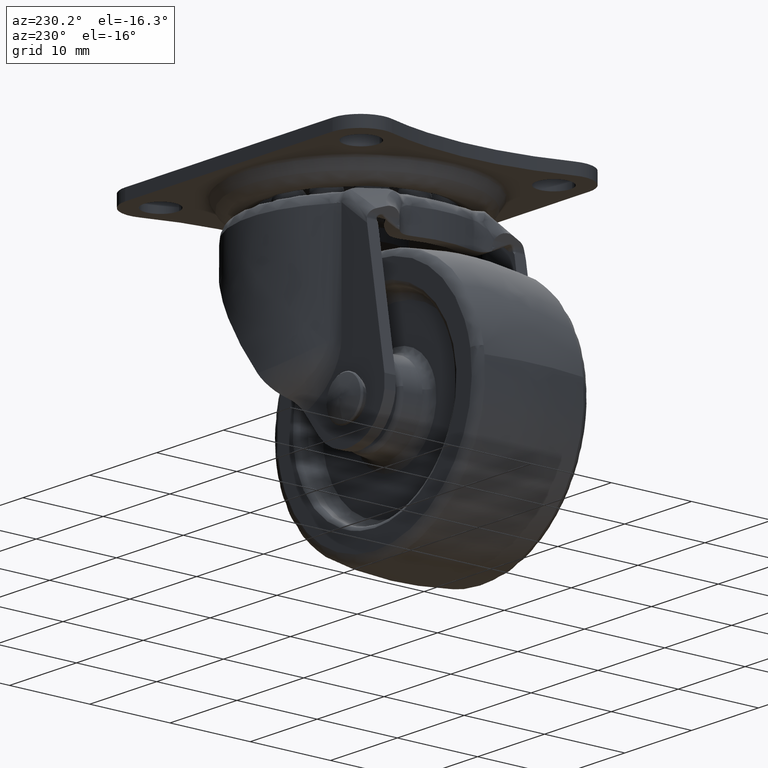
[diagram: clean part render]
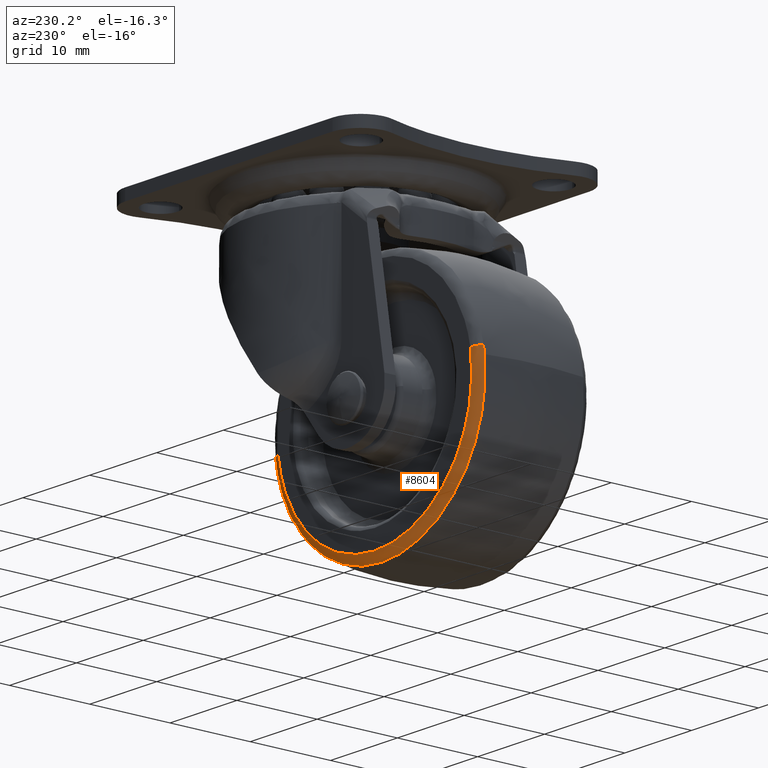
[diagram: same view with one face highlighted and labeled with its STEP entity id]
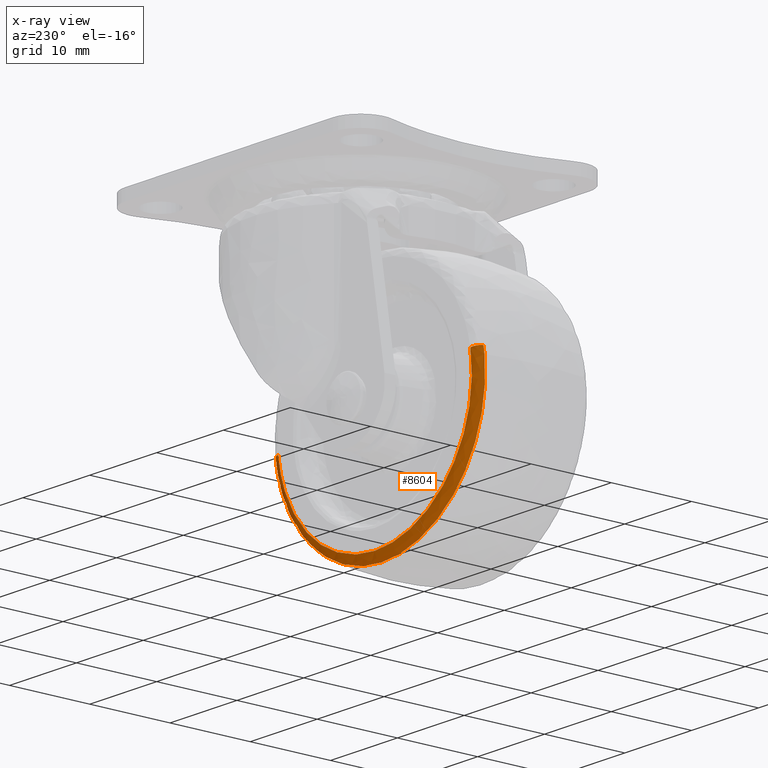
[diagram: x-ray of the same camera — body ghosted, the highlighted face saturated]
A machine part, auxiliary view. The second image highlights one B-rep face of the part: STEP entity #8604.
The next image is the same camera in x-ray: the body ghosted, the highlighted face saturated — about 0% of this face is hidden behind the body in this view.
In plain terms, the highlighted face is a freeform B-spline surface patch.
Its self-contained STEP definition (entity closure, byte-faithful):
#8399=CARTESIAN_POINT('',(14.433406335749989,6.999999999999970,-1.721420277750127));
#8400=VERTEX_POINT('',#8399);
#8418=CARTESIAN_POINT('',(-14.311329488514090,6.999999999999970,2.544082268024152));
#8419=VERTEX_POINT('',#8418);
#8433=CARTESIAN_POINT('',(-15.284173136435090,6.153842661553890,2.717021775451945));
#8434=VERTEX_POINT('',#8433);
#8435=CARTESIAN_POINT('',(-14.311329488514081,6.999999999999970,2.544082268024152));
#8436=CARTESIAN_POINT('',(-15.154463305009743,7.000000292094405,2.693963646407820));
#8437=CARTESIAN_POINT('',(-15.284173136435093,6.153842661553891,2.717021775451945));
#8445=(BOUNDED_CURVE()B_SPLINE_CURVE(2,(#8435,#8436,#8437),.UNSPECIFIED.,.F.,.U.)B_SPLINE_CURVE_WITH_KNOTS((3,3),(-1.701371931006855,-0.288958177287752),.UNSPECIFIED.)CURVE()GEOMETRIC_REPRESENTATION_ITEM()RATIONAL_B_SPLINE_CURVE((0.890726100994359,0.677668580188769,0.893663548391565))REPRESENTATION_ITEM(''));
#8446=EDGE_CURVE('',#8419,#8434,#8445,.T.);
#8463=CARTESIAN_POINT('',(15.414548025164860,6.153844244464961,-1.838437505706083));
#8464=VERTEX_POINT('',#8463);
#8480=CARTESIAN_POINT('',(14.433406335749991,6.999999999999970,-1.721420277750127));
#8481=CARTESIAN_POINT('',(15.283730757854467,7.000000297382637,-1.822835402396810));
#8482=CARTESIAN_POINT('',(15.414548025164859,6.153844244464961,-1.838437505706083));
#8490=(BOUNDED_CURVE()B_SPLINE_CURVE(2,(#8480,#8481,#8482),.UNSPECIFIED.,.F.,.U.)B_SPLINE_CURVE_WITH_KNOTS((3,3),(-1.701371937701146,-0.288959945664872),.UNSPECIFIED.)CURVE()GEOMETRIC_REPRESENTATION_ITEM()RATIONAL_B_SPLINE_CURVE((0.870689932615801,0.662425227903326,0.873560773816694))REPRESENTATION_ITEM(''));
#8491=EDGE_CURVE('',#8400,#8464,#8490,.T.);
#8496=CARTESIAN_POINT('',(-14.248069212282791,6.997933680063293,2.532836677673929));
#8497=CARTESIAN_POINT('',(-16.780905889956724,6.997933680063293,-11.715232534608861));
#8498=CARTESIAN_POINT('',(-2.532836677673930,6.997933680063293,-14.248069212282791));
#8499=CARTESIAN_POINT('',(11.715232534608861,6.997933680063293,-16.780905889956724));
#8500=CARTESIAN_POINT('',(14.248069212282791,6.997933680063293,-2.532836677673931));
#8501=CARTESIAN_POINT('',(14.320557839867464,6.997933680063294,-2.125063451696235));
#8502=CARTESIAN_POINT('',(14.369606352477463,6.997933680063295,-1.713811888338582));
#8503=CARTESIAN_POINT('',(-15.205300958305825,7.060531704962327,2.703000904085104));
#8504=CARTESIAN_POINT('',(-17.908301862390925,7.060531704962326,-12.502300054220715));
#8505=CARTESIAN_POINT('',(-2.703000904085106,7.060531704962327,-15.205300958305825));
#8506=CARTESIAN_POINT('',(12.502300054220715,7.060531704962326,-17.908301862390925));
#8507=CARTESIAN_POINT('',(15.205300958305825,7.060531704962327,-2.703000904085107));
#8508=CARTESIAN_POINT('',(15.282659608243405,7.060531704962326,-2.267832143226967));
#8509=CARTESIAN_POINT('',(15.335003359854973,7.060531704962327,-1.828951358942441));
#8510=CARTESIAN_POINT('',(-15.291875760086812,6.090256002165612,2.718391047833437));
#8511=CARTESIAN_POINT('',(-18.010266807920235,6.090256002165610,-12.573484712253364));
#8512=CARTESIAN_POINT('',(-2.718391047833438,6.090256002165612,-15.291875760086812));
#8513=CARTESIAN_POINT('',(12.573484712253364,6.090256002165610,-18.010266807920235));
#8514=CARTESIAN_POINT('',(15.291875760086812,6.090256002165612,-2.718391047833438));
#8515=CARTESIAN_POINT('',(15.369674868901377,6.090256002165610,-2.280744555734341));
#8516=CARTESIAN_POINT('',(15.422316651438662,6.090256002165613,-1.839364904968376));
#8524=(BOUNDED_SURFACE()B_SPLINE_SURFACE(2,2,((#8496,#8503,#8510),(#8497,#8504,#8511),(#8498,#8505,#8512),(#8499,#8506,#8513),(#8500,#8507,#8514),(#8501,#8508,#8515),(#8502,#8509,#8516)),.UNSPECIFIED.,.F.,.F.,.U.)B_SPLINE_SURFACE_WITH_KNOTS((3,2,2,3),(3,3),(0.0,25.733624962074831,51.467249924149662,52.496593940972758),(0.0,1.626377327922925),.UNSPECIFIED.)GEOMETRIC_REPRESENTATION_ITEM()RATIONAL_B_SPLINE_SURFACE(((0.913081197338649,0.655166785645628,0.916312040424044),(0.645645906412091,0.463272876938217,0.647930457466723),(0.913081197338649,0.655166785645628,0.916312040424044),(0.645645906412091,0.463272876938217,0.647930457466723),(0.913081197338649,0.655166785645628,0.916312040424044),(0.902383795903434,0.647491036617504,0.905576787343696),(0.892542185766888,0.640429346926016,0.895700353690741)))REPRESENTATION_ITEM('')SURFACE());
#8525=CARTESIAN_POINT('',(0.0,7.0,-14.535697650934241));
#8526=VERTEX_POINT('',#8525);
#8527=CARTESIAN_POINT('',(0.0,7.0,-14.535697650934241));
#8528=CARTESIAN_POINT('',(12.905093724362754,6.999999999999999,-14.535697650934235));
#8529=CARTESIAN_POINT('',(14.433406335749988,6.999999999999970,-1.721420277750127));
#8537=(BOUNDED_CURVE()B_SPLINE_CURVE(2,(#8527,#8528,#8529),.UNSPECIFIED.,.F.,.U.)B_SPLINE_CURVE_WITH_KNOTS((3,3),(0.0,0.229495616428866),.UNSPECIFIED.)CURVE()GEOMETRIC_REPRESENTATION_ITEM()RATIONAL_B_SPLINE_CURVE((1.0,0.731129160802288,0.955895753455980))REPRESENTATION_ITEM(''));
#8538=EDGE_CURVE('',#8526,#8400,#8537,.T.);
#8539=ORIENTED_EDGE('',*,*,#8538,.T.);
#8540=ORIENTED_EDGE('',*,*,#8491,.T.);
#8541=CARTESIAN_POINT('',(0.0,6.153846112684540,-15.523792556147701));
#8542=VERTEX_POINT('',#8541);
#8543=CARTESIAN_POINT('',(0.0,6.153846112684540,-15.523792556147701));
#8544=CARTESIAN_POINT('',(13.782344601587027,6.153846112684540,-15.523792556147706));
#8545=CARTESIAN_POINT('',(15.414548025164859,6.153844244464962,-1.838437505706083));
#8553=(BOUNDED_CURVE()B_SPLINE_CURVE(2,(#8543,#8544,#8545),.UNSPECIFIED.,.F.,.U.)B_SPLINE_CURVE_WITH_KNOTS((3,3),(0.0,0.229495613208499),.UNSPECIFIED.)CURVE()GEOMETRIC_REPRESENTATION_ITEM()RATIONAL_B_SPLINE_CURVE((1.0,0.731129164575183,0.955895747147964))REPRESENTATION_ITEM(''));
#8554=EDGE_CURVE('',#8542,#8464,#8553,.T.);
#8555=ORIENTED_EDGE('',*,*,#8554,.F.);
#8556=CARTESIAN_POINT('',(-15.419964579828569,6.153842671092996,1.792440883301940));
#8557=VERTEX_POINT('',#8556);
#8558=CARTESIAN_POINT('',(-15.419964579828571,6.153842671092996,1.792440883301939));
#8559=CARTESIAN_POINT('',(-15.523793074690465,6.153842759855809,0.899227643966485));
#8560=CARTESIAN_POINT('',(-15.523793059274370,6.153842859534223,0.000000058484235));
#8561=CARTESIAN_POINT('',(-15.523792793139039,6.153844580329994,-15.523792528599461));
#8562=CARTESIAN_POINT('',(0.0,6.153846112684540,-15.523792556147701));
#8570=(BOUNDED_CURVE()B_SPLINE_CURVE(2,(#8558,#8559,#8560,#8561,#8562),.UNSPECIFIED.,.F.,.U.)B_SPLINE_CURVE_WITH_KNOTS((3,2,3),(0.730000021087391,0.750000000000000,1.0),.UNSPECIFIED.)CURVE()GEOMETRIC_REPRESENTATION_ITEM()RATIONAL_B_SPLINE_CURVE((0.956886159695762,0.976568567200339,1.0,0.707106781186547,1.0))REPRESENTATION_ITEM(''));
#8571=EDGE_CURVE('',#8557,#8542,#8570,.T.);
#8572=ORIENTED_EDGE('',*,*,#8571,.F.);
#8573=CARTESIAN_POINT('',(-15.284173136435095,6.153842661553890,2.717021775451945));
#8574=CARTESIAN_POINT('',(-15.365989548594561,6.153842655876486,2.256775834270563));
#8575=CARTESIAN_POINT('',(-15.419964579828571,6.153842671092996,1.792440883301939));
#8583=(BOUNDED_CURVE()B_SPLINE_CURVE(2,(#8573,#8574,#8575),.UNSPECIFIED.,.F.,.U.)B_SPLINE_CURVE_WITH_KNOTS((3,3),(0.719918253124407,0.730000021087391),.UNSPECIFIED.)CURVE()GEOMETRIC_REPRESENTATION_ITEM()RATIONAL_B_SPLINE_CURVE((0.937995440737806,0.946964475963939,0.956886159695762))REPRESENTATION_ITEM(''));
#8584=EDGE_CURVE('',#8434,#8557,#8583,.T.);
#8585=ORIENTED_EDGE('',*,*,#8584,.F.);
#8586=ORIENTED_EDGE('',*,*,#8446,.F.);
#8587=CARTESIAN_POINT('',(-14.311329488514087,6.999999999999970,2.544082268024152));
#8588=CARTESIAN_POINT('',(-14.535697650934241,7.0,1.281934892805403));
#8589=CARTESIAN_POINT('',(-14.535697650934241,7.0,8.173480E-016));
#8590=CARTESIAN_POINT('',(-14.535697650934241,6.999999999999999,-14.535697650934241));
#8591=CARTESIAN_POINT('',(0.0,7.0,-14.535697650934241));
#8599=(BOUNDED_CURVE()B_SPLINE_CURVE(2,(#8587,#8588,#8589,#8590,#8591),.UNSPECIFIED.,.F.,.U.)B_SPLINE_CURVE_WITH_KNOTS((3,2,3),(0.719918253207514,0.750000000000000,1.0),.UNSPECIFIED.)CURVE()GEOMETRIC_REPRESENTATION_ITEM()RATIONAL_B_SPLINE_CURVE((0.937995440885673,0.964757041417670,1.0,0.707106781186547,1.0))REPRESENTATION_ITEM(''));
#8600=EDGE_CURVE('',#8419,#8526,#8599,.T.);
#8601=ORIENTED_EDGE('',*,*,#8600,.T.);
#8602=EDGE_LOOP('',(#8539,#8540,#8555,#8572,#8585,#8586,#8601));
#8603=FACE_OUTER_BOUND('',#8602,.T.);
#8604=ADVANCED_FACE('',(#8603),#8524,.T.);